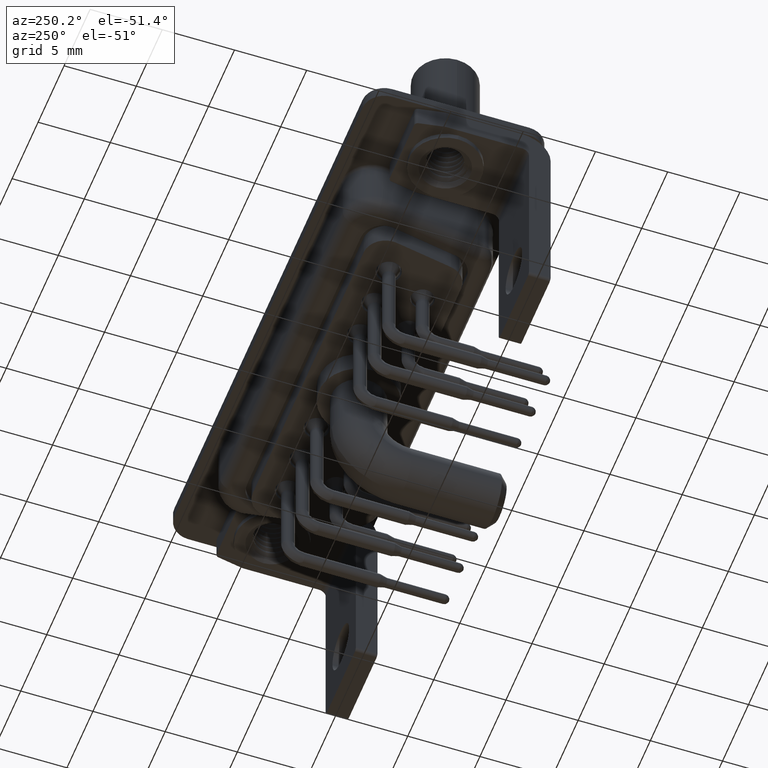
[diagram: clean part render]
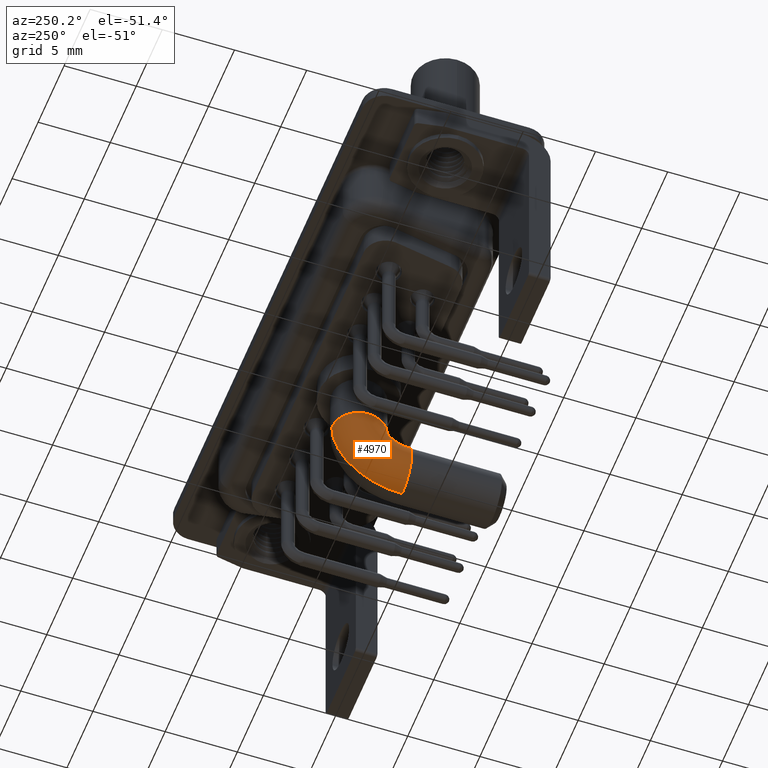
[diagram: same view with one face highlighted and labeled with its STEP entity id]
A machine part, auxiliary view. The second image highlights one B-rep face of the part: STEP entity #4970.
In plain terms, the highlighted toroidal blend (fillet) surface has major radius 3 mm and minor (blend) radius 1.875 mm.
Its self-contained STEP definition (entity closure, byte-faithful):
#157 = EDGE_CURVE ( 'NONE', #268, #12702, #8166, .T. ) ;
#268 = VERTEX_POINT ( 'NONE', #7605 ) ;
#276 = ORIENTED_EDGE ( 'NONE', *, *, #6452, .T. ) ;
#443 = DIRECTION ( 'NONE',  ( -1.000000000000000000, -0.0000000000000000000, 0.0000000000000000000 ) ) ;
#1098 = CIRCLE ( 'NONE', #13115, 4.875000000000000888 ) ;
#1207 = ORIENTED_EDGE ( 'NONE', *, *, #157, .F. ) ;
#2259 = DIRECTION ( 'NONE',  ( 0.0000000000000000000, 0.0000000000000000000, 1.000000000000000000 ) ) ;
#2686 = CARTESIAN_POINT ( 'NONE',  ( 0.0000000000000000000, -3.000000000000000000, -3.499999999999999556 ) ) ;
#2931 = DIRECTION ( 'NONE',  ( -1.000000000000000000, 0.0000000000000000000, 0.0000000000000000000 ) ) ;
#3569 = DIRECTION ( 'NONE',  ( 0.0000000000000000000, 0.0000000000000000000, -1.000000000000000000 ) ) ;
#4970 = ADVANCED_FACE ( 'NONE', ( #7835 ), #9337, .T. ) ;
#5063 = CARTESIAN_POINT ( 'NONE',  ( 0.0000000000000000000, 0.0000000000000000000, -3.499999999999999556 ) ) ;
#5306 = DIRECTION ( 'NONE',  ( -1.000000000000000000, 0.0000000000000000000, 0.0000000000000000000 ) ) ;
#5463 = CARTESIAN_POINT ( 'NONE',  ( 0.0000000000000000000, -2.999999999999999112, -8.375000000000000000 ) ) ;
#6452 = EDGE_CURVE ( 'NONE', #18554, #20693, #14169, .T. ) ;
#6995 = DIRECTION ( 'NONE',  ( 0.0000000000000000000, 0.0000000000000000000, 1.000000000000000000 ) ) ;
#7605 = CARTESIAN_POINT ( 'NONE',  ( 2.296212748401287479E-16, -1.875000000000000222, -3.499999999999999556 ) ) ;
#7751 = CARTESIAN_POINT ( 'NONE',  ( 0.0000000000000000000, -2.999999999999999556, -6.500000000000000888 ) ) ;
#7835 = FACE_OUTER_BOUND ( 'NONE', #14612, .T. ) ;
#8072 = EDGE_CURVE ( 'NONE', #268, #18554, #9039, .T. ) ;
#8166 = CIRCLE ( 'NONE', #14343, 1.125000000000000666 ) ;
#8471 = VERTEX_POINT ( 'NONE', #5463 ) ;
#8605 = CARTESIAN_POINT ( 'NONE',  ( 0.0000000000000000000, -3.000000000000000000, -3.499999999999999556 ) ) ;
#9022 = DIRECTION ( 'NONE',  ( -1.000000000000000000, -0.0000000000000000000, 0.0000000000000000000 ) ) ;
#9039 = CIRCLE ( 'NONE', #15900, 1.875000000000000000 ) ;
#9337 = TOROIDAL_SURFACE ( 'NONE', #15487, 3.000000000000000444, 1.875000000000000000 ) ;
#9759 = CARTESIAN_POINT ( 'NONE',  ( 0.0000000000000000000, 1.875000000000000444, -3.499999999999999556 ) ) ;
#10633 = CARTESIAN_POINT ( 'NONE',  ( 2.296212748401286986E-16, -3.000000000000000000, -3.499999999999999556 ) ) ;
#11146 = CARTESIAN_POINT ( 'NONE',  ( 2.296212748401286986E-16, -3.000000000000000000, -4.625000000000000888 ) ) ;
#12237 = EDGE_CURVE ( 'NONE', #12702, #8471, #20211, .T. ) ;
#12702 = VERTEX_POINT ( 'NONE', #11146 ) ;
#13115 = AXIS2_PLACEMENT_3D ( 'NONE', #8605, #443, #6995 ) ;
#13482 = CARTESIAN_POINT ( 'NONE',  ( 0.0000000000000000000, 0.0000000000000000000, -3.499999999999999556 ) ) ;
#14169 = CIRCLE ( 'NONE', #19613, 1.875000000000000000 ) ;
#14343 = AXIS2_PLACEMENT_3D ( 'NONE', #10633, #9022, #2259 ) ;
#14612 = EDGE_LOOP ( 'NONE', ( #276, #19761, #14620, #1207, #15169 ) ) ;
#14620 = ORIENTED_EDGE ( 'NONE', *, *, #12237, .F. ) ;
#14949 = CARTESIAN_POINT ( 'NONE',  ( -1.875000000000000000, 0.0000000000000000000, -3.499999999999999556 ) ) ;
#15169 = ORIENTED_EDGE ( 'NONE', *, *, #8072, .T. ) ;
#15487 = AXIS2_PLACEMENT_3D ( 'NONE', #2686, #20782, #20997 ) ;
#15900 = AXIS2_PLACEMENT_3D ( 'NONE', #5063, #3569, #19838 ) ;
#17521 = EDGE_CURVE ( 'NONE', #20693, #8471, #1098, .T. ) ;
#18554 = VERTEX_POINT ( 'NONE', #14949 ) ;
#18900 = AXIS2_PLACEMENT_3D ( 'NONE', #7751, #20486, #2931 ) ;
#19613 = AXIS2_PLACEMENT_3D ( 'NONE', #13482, #19981, #5306 ) ;
#19761 = ORIENTED_EDGE ( 'NONE', *, *, #17521, .T. ) ;
#19838 = DIRECTION ( 'NONE',  ( -1.000000000000000000, 0.0000000000000000000, 0.0000000000000000000 ) ) ;
#19981 = DIRECTION ( 'NONE',  ( 0.0000000000000000000, 0.0000000000000000000, -1.000000000000000000 ) ) ;
#20211 = CIRCLE ( 'NONE', #18900, 1.875000000000000000 ) ;
#20486 = DIRECTION ( 'NONE',  ( 0.0000000000000000000, -1.000000000000000000, -1.445602896647338917E-16 ) ) ;
#20693 = VERTEX_POINT ( 'NONE', #9759 ) ;
#20782 = DIRECTION ( 'NONE',  ( -1.000000000000000000, -0.0000000000000000000, 0.0000000000000000000 ) ) ;
#20997 = DIRECTION ( 'NONE',  ( 0.0000000000000000000, 0.0000000000000000000, 1.000000000000000000 ) ) ;